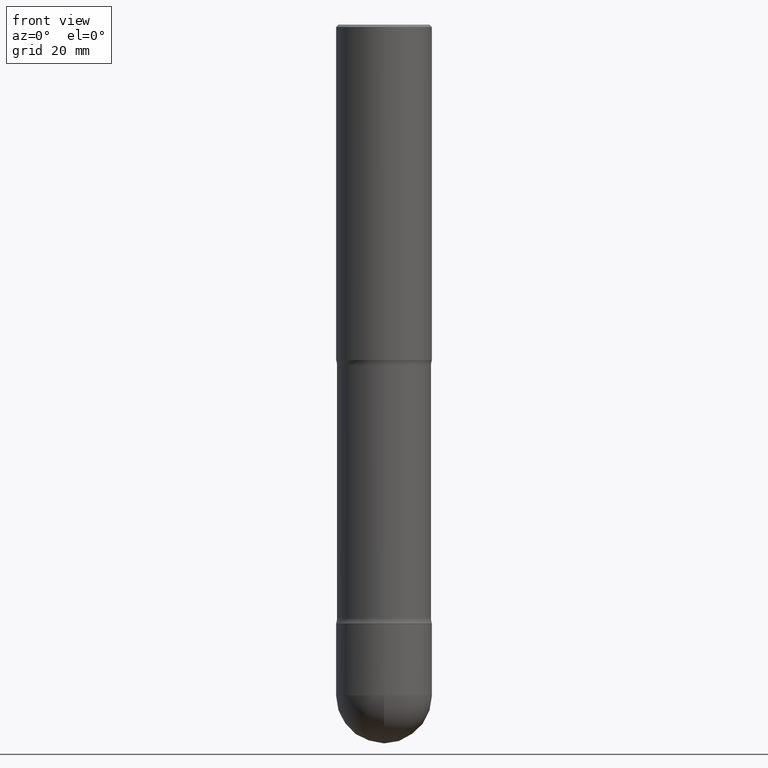
[diagram: clean part render]
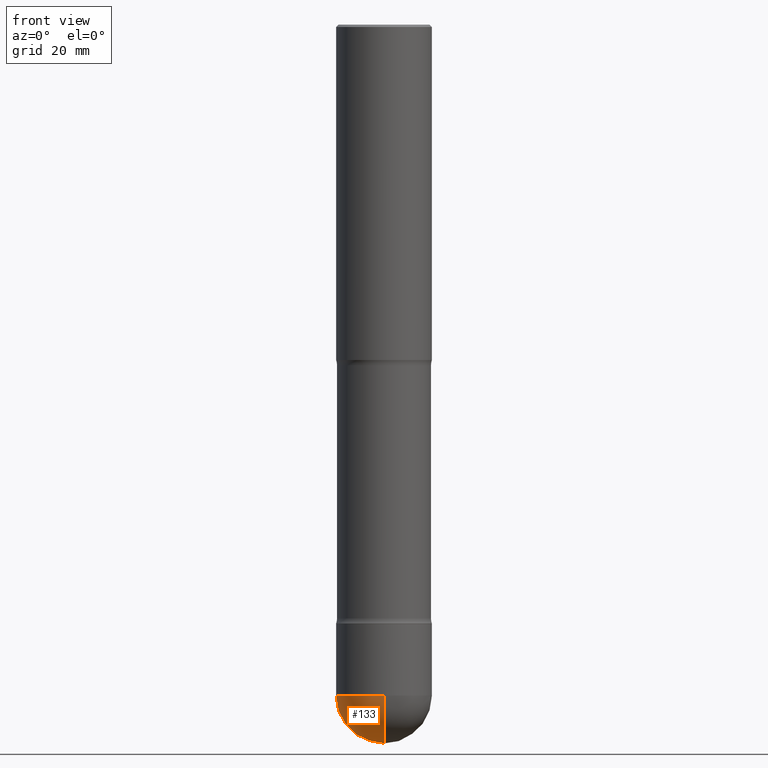
[diagram: same view with one face highlighted and labeled with its STEP entity id]
A machine part, front view. The second image highlights one B-rep face of the part: STEP entity #133.
In plain terms, the highlighted spherical surface has radius 10 mm.
Its self-contained STEP definition (entity closure, byte-faithful):
#6 = CARTESIAN_POINT ( 'NONE',  ( 1.344526706912624446E-28, -1.929256118791808272E-14, -5.511800000000000033 ) ) ;
#7 = CARTESIAN_POINT ( 'NONE',  ( -0.3936999999999989952, -1.541590565338776243E-14, -5.511800000000000033 ) ) ;
#19 = CIRCLE ( 'NONE', #236, 0.3936999999999989952 ) ;
#34 = EDGE_LOOP ( 'NONE', ( #565, #170, #548, #541 ) ) ;
#35 = VERTEX_POINT ( 'NONE', #94 ) ;
#66 = CIRCLE ( 'NONE', #149, 0.3936999999999993838 ) ;
#81 = EDGE_CURVE ( 'NONE', #426, #35, #66, .T. ) ;
#94 = CARTESIAN_POINT ( 'NONE',  ( -2.797406750687373580E-15, -0.3937000000000184796, -5.511799999999999145 ) ) ;
#99 = DIRECTION ( 'NONE',  ( 1.000000000000000000, -6.982962677686266711E-15, 0.000000000000000000 ) ) ;
#133 = ADVANCED_FACE ( 'NONE', ( #458 ), #238, .T. ) ;
#149 = AXIS2_PLACEMENT_3D ( 'NONE', #6, #176, #178 ) ;
#158 = AXIS2_PLACEMENT_3D ( 'NONE', #305, #483, #99 ) ;
#164 = AXIS2_PLACEMENT_3D ( 'NONE', #413, #372, #327 ) ;
#165 = EDGE_CURVE ( 'NONE', #566, #35, #19, .T. ) ;
#170 = ORIENTED_EDGE ( 'NONE', *, *, #81, .T. ) ;
#176 = DIRECTION ( 'NONE',  ( -1.000000000000000000, 7.105427357601001070E-15, -4.926315508542082329E-29 ) ) ;
#178 = DIRECTION ( 'NONE',  ( -7.105427357601001070E-15, -1.000000000000000000, 0.000000000000000000 ) ) ;
#236 = AXIS2_PLACEMENT_3D ( 'NONE', #474, #341, #463 ) ;
#238 = SPHERICAL_SURFACE ( 'NONE', #164, 0.3936999999999993838 ) ;
#251 = VERTEX_POINT ( 'NONE', #276 ) ;
#252 = CARTESIAN_POINT ( 'NONE',  ( 1.442488208652382782E-28, -2.064305021877940893E-14, -5.905499999999999972 ) ) ;
#276 = CARTESIAN_POINT ( 'NONE',  ( 2.749192406205212195E-15, 0.3936999999999799549, -5.511800000000000921 ) ) ;
#293 = AXIS2_PLACEMENT_3D ( 'NONE', #521, #557, #441 ) ;
#296 = EDGE_CURVE ( 'NONE', #426, #251, #503, .T. ) ;
#305 = CARTESIAN_POINT ( 'NONE',  ( 1.347893496593123646E-28, -1.924434684343564878E-14, -5.511800000000000033 ) ) ;
#327 = DIRECTION ( 'NONE',  ( 6.982962677686265133E-15, 1.000000000000000000, -2.775563112689121034E-15 ) ) ;
#341 = DIRECTION ( 'NONE',  ( -2.445468806185136597E-29, 3.491481338843145583E-15, 1.000000000000000000 ) ) ;
#372 = DIRECTION ( 'NONE',  ( -1.000000000000000000, 6.982962677686265133E-15, -4.883557194083111780E-29 ) ) ;
#413 = CARTESIAN_POINT ( 'NONE',  ( 1.344526706912624446E-28, -1.929256118791808272E-14, -5.511800000000000033 ) ) ;
#426 = VERTEX_POINT ( 'NONE', #252 ) ;
#441 = DIRECTION ( 'NONE',  ( 6.982962677686265922E-15, 1.000000000000000000, 0.000000000000000000 ) ) ;
#458 = FACE_OUTER_BOUND ( 'NONE', #34, .T. ) ;
#463 = DIRECTION ( 'NONE',  ( 1.000000000000000000, -6.982962677686266711E-15, 0.000000000000000000 ) ) ;
#473 = CIRCLE ( 'NONE', #158, 0.3936999999999989952 ) ;
#474 = CARTESIAN_POINT ( 'NONE',  ( 1.347893496593123646E-28, -1.924434684343564878E-14, -5.511800000000000033 ) ) ;
#483 = DIRECTION ( 'NONE',  ( -2.445468806185136597E-29, 3.491481338843145583E-15, 1.000000000000000000 ) ) ;
#503 = CIRCLE ( 'NONE', #293, 0.3936999999999993838 ) ;
#505 = EDGE_CURVE ( 'NONE', #251, #566, #473, .T. ) ;
#521 = CARTESIAN_POINT ( 'NONE',  ( 1.344526706912624446E-28, -1.929256118791808272E-14, -5.511800000000000033 ) ) ;
#541 = ORIENTED_EDGE ( 'NONE', *, *, #505, .F. ) ;
#548 = ORIENTED_EDGE ( 'NONE', *, *, #165, .F. ) ;
#557 = DIRECTION ( 'NONE',  ( 1.000000000000000000, -6.982962677686265922E-15, 4.883557194083112340E-29 ) ) ;
#565 = ORIENTED_EDGE ( 'NONE', *, *, #296, .F. ) ;
#566 = VERTEX_POINT ( 'NONE', #7 ) ;